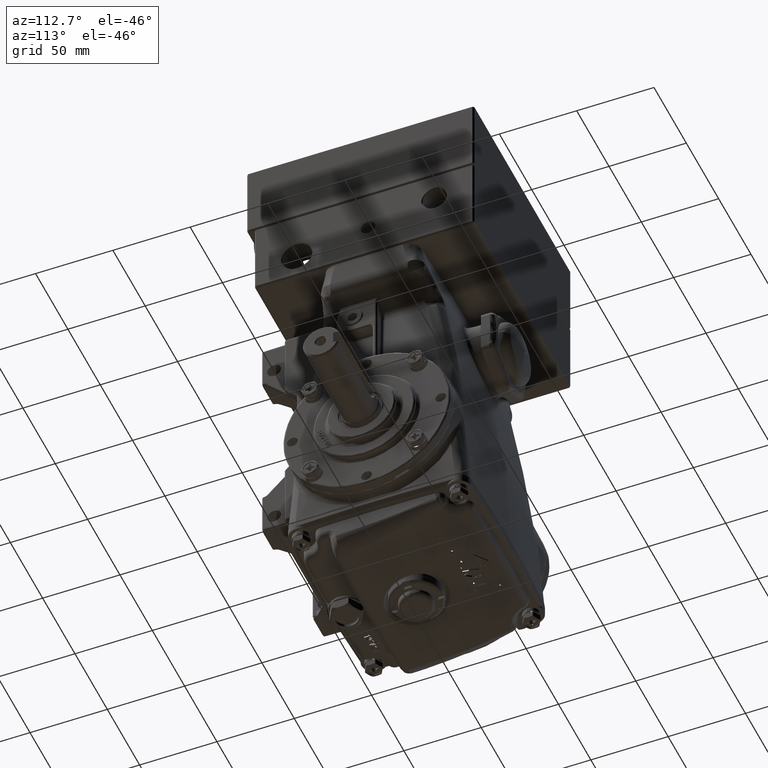
[diagram: clean part render]
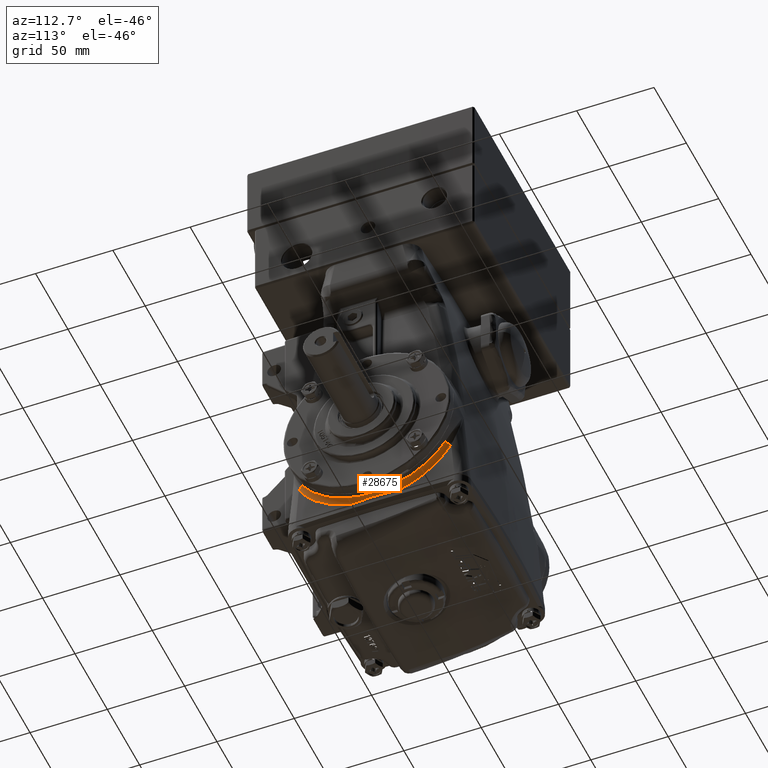
[diagram: same view with one face highlighted and labeled with its STEP entity id]
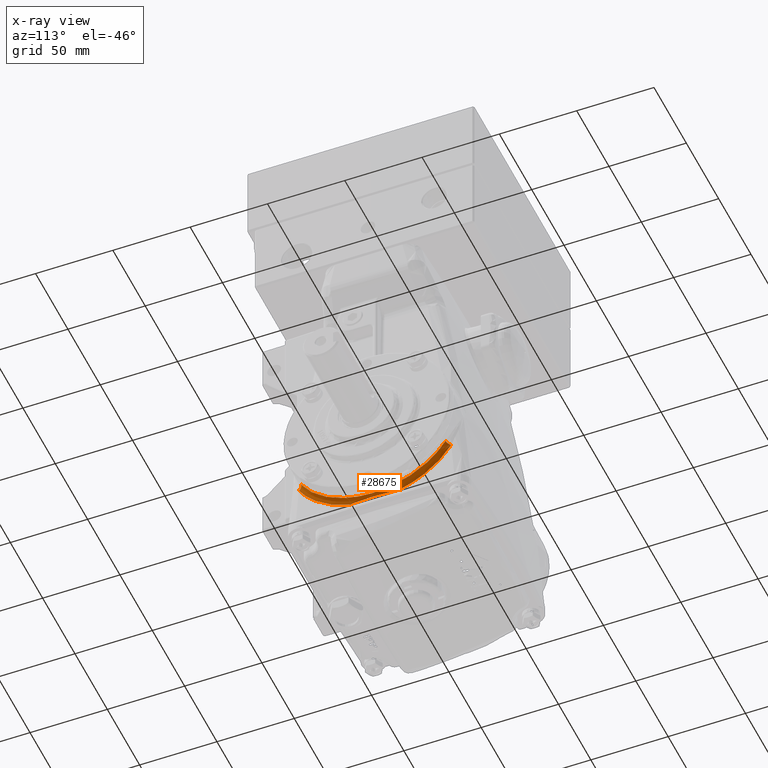
[diagram: x-ray of the same camera — body ghosted, the highlighted face saturated]
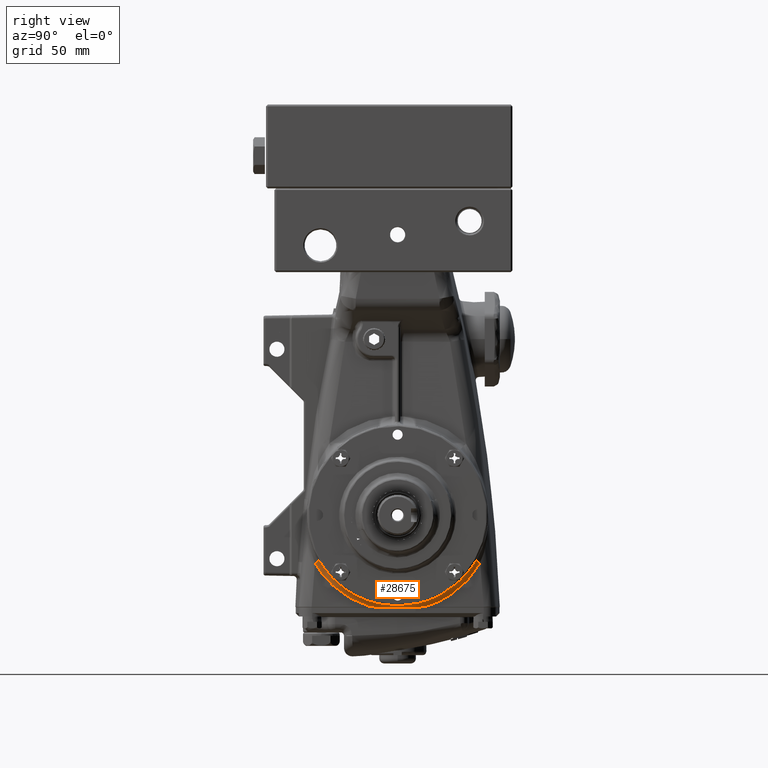
[diagram: same view with one face highlighted and labeled with its STEP entity id]
A machine part, auxiliary view. The second image highlights one B-rep face of the part: STEP entity #28675.
The next image is the same camera in x-ray: the body ghosted, the highlighted face saturated — about 0% of this face is hidden behind the body in this view.
A second angle (right view) of the same face is appended — the face is thin or edge-on in the first view.
In plain terms, the highlighted face is a freeform B-spline surface patch.
Its self-contained STEP definition (entity closure, byte-faithful):
#23 = CARTESIAN_POINT ( 'NONE',  ( 2.533662841169639801, -1.617947998289425149, -1.557200396509099694 ) ) ;
#648 = CARTESIAN_POINT ( 'NONE',  ( 2.644565679274406111, -1.658161094017195358, -1.337354464801967069 ) ) ;
#870 = CARTESIAN_POINT ( 'NONE',  ( 2.544669586071942380, -1.221535100532345375, -1.750112765976864271 ) ) ;
#1262 = CARTESIAN_POINT ( 'NONE',  ( 2.555075118178322668, -0.6404734185167771932, -2.153543307086315917 ) ) ;
#1298 = FACE_OUTER_BOUND ( 'NONE', #17315, .T. ) ;
#1511 = CARTESIAN_POINT ( 'NONE',  ( 2.669889708392947814, 0.6394416007698479065, -2.032928589424304544 ) ) ;
#1712 = CARTESIAN_POINT ( 'NONE',  ( 2.548949484824901024, -1.022806363078668568, -1.871388351057161392 ) ) ;
#1926 = CARTESIAN_POINT ( 'NONE',  ( 2.647743888551647995, 1.566636320473507427, -1.442810299648261241 ) ) ;
#2128 = CARTESIAN_POINT ( 'NONE',  ( 2.558814087439527540, 0.1828781448539885945, -2.126078821022451049 ) ) ;
#2334 = CARTESIAN_POINT ( 'NONE',  ( 2.671949241928070595, 0.4604519964451422309, -2.079200573250728823 ) ) ;
#2539 = CARTESIAN_POINT ( 'NONE',  ( 2.558184714264037041, -0.3008402396508382814, -2.110707117994672366 ) ) ;
#2867 = EDGE_CURVE ( 'NONE', #45220, #8309, #32779, .T. ) ;
#2951 = CARTESIAN_POINT ( 'NONE',  ( 2.556782167167373387, -0.4864084616807792250, -2.194172403450410869 ) ) ;
#3367 = CARTESIAN_POINT ( 'NONE',  ( 2.558045679442789044, -0.3238467914005959680, -2.107304575885299958 ) ) ;
#3788 = CARTESIAN_POINT ( 'NONE',  ( 2.539031074582507319, 1.438562375046146258, -1.726894780805150909 ) ) ;
#3866 = CARTESIAN_POINT ( 'NONE',  ( 2.534309786186392355, 1.597031957751703812, -1.578360898291733649 ) ) ;
#4218 = CARTESIAN_POINT ( 'NONE',  ( 2.532430959056218622, 1.658885297067743902, -1.340924036746132586 ) ) ;
#4465 = DIRECTION ( 'NONE',  ( 0.000000000000000000, -0.8648018545388614919, -0.5021132864067091583 ) ) ;
#4649 = CARTESIAN_POINT ( 'NONE',  ( 2.555196129306011699, 0.6378542994640497010, -2.036428387833685960 ) ) ;
#5068 = CARTESIAN_POINT ( 'NONE',  ( 2.554756005597019985, 0.6722682728851658851, -2.146013995122913354 ) ) ;
#5497 = CARTESIAN_POINT ( 'NONE',  ( 2.637595659439549323, 1.842469967156803001, -1.068593768694690249 ) ) ;
#5747 = CARTESIAN_POINT ( 'NONE',  ( 2.522521393050355609, -1.940161841764285855, -1.127831104470543133 ) ) ;
#5798 = CARTESIAN_POINT ( 'NONE',  ( 2.663869551404951075, -0.9802377651320554053, -1.890786485681149820 ) ) ;
#6881 = CARTESIAN_POINT ( 'NONE',  ( 2.651958226480952252, -1.437967453600704548, -1.573498494630629407 ) ) ;
#7302 = CARTESIAN_POINT ( 'NONE',  ( 2.540989341622620579, -1.368347640236420082, -1.637995886437610293 ) ) ;
#8144 = CARTESIAN_POINT ( 'NONE',  ( 2.522521393050355609, -1.940161841764285411, -1.127831104470542467 ) ) ;
#8309 = VERTEX_POINT ( 'NONE', #64370 ) ;
#8408 = ORIENTED_EDGE ( 'NONE', *, *, #82575, .F. ) ;
#8562 = CARTESIAN_POINT ( 'NONE',  ( 2.660149751681381236, -1.144808253429962175, -1.797871288508219312 ) ) ;
#8754 = CARTESIAN_POINT ( 'NONE',  ( 2.672754673123566516, -0.3684781519284270890, -2.097048332008029536 ) ) ;
#8976 = CARTESIAN_POINT ( 'NONE',  ( 2.559052085147528466, -0.09875448280256569900, -2.247014776447992634 ) ) ;
#9393 = CARTESIAN_POINT ( 'NONE',  ( 2.663829786781286568, -0.9821169879143923920, -1.889812968219207079 ) ) ;
#9808 = CARTESIAN_POINT ( 'NONE',  ( 2.557015086646113655, -0.4614863937323371301, -2.081917431988376421 ) ) ;
#9842 = ORIENTED_EDGE ( 'NONE', *, *, #27248, .F. ) ;
#9881 = CARTESIAN_POINT ( 'NONE',  ( 2.538898389139051304, 1.442292871496442253, -1.722454615774438702 ) ) ;
#10221 = CARTESIAN_POINT ( 'NONE',  ( 2.644563709260681961, 1.658215685450744603, -1.337285343116261460 ) ) ;
#10298 = CARTESIAN_POINT ( 'NONE',  ( 2.541868229160636705, 1.331996865016377596, -1.809395644676925929 ) ) ;
#10712 = CARTESIAN_POINT ( 'NONE',  ( 2.555075118178336879, 0.6404734185157724413, -2.153543307086616121 ) ) ;
#11054 = CARTESIAN_POINT ( 'NONE',  ( 2.665568392059273428, 0.8963036899662819579, -1.931945387120824309 ) ) ;
#11468 = CARTESIAN_POINT ( 'NONE',  ( 2.545081750335998816, 1.203034634218210108, -1.899131247718302218 ) ) ;
#11785 = EDGE_CURVE ( 'NONE', #25465, #26862, #45399, .T. ) ;
#11888 = CARTESIAN_POINT ( 'NONE',  ( 2.639463853244834901, 1.795483805880083050, -1.149514228360580370 ) ) ;
#12196 = CARTESIAN_POINT ( 'NONE',  ( 2.637595646717533882, -1.842470287122776940, -1.068593217643021065 ) ) ;
#12546 = AXIS2_PLACEMENT_3D ( 'NONE', #45602, #13046, #60080 ) ;
#12842 = CARTESIAN_POINT ( 'NONE',  ( 2.533330167034940406, -1.630694908148139888, -1.375038247301973549 ) ) ;
#13046 = DIRECTION ( 'NONE',  ( -0.01891316381556707241, 0.5020237322793777990, 0.8646470172635589702 ) ) ;
#13264 = CARTESIAN_POINT ( 'NONE',  ( 2.538961819241198015, -1.441037874825124909, -1.724825093989587055 ) ) ;
#13901 = CARTESIAN_POINT ( 'NONE',  ( 2.654127589063849157, -1.366640611082587942, -1.635735065369005481 ) ) ;
#14093 = CARTESIAN_POINT ( 'NONE',  ( 2.571794777511133834, -0.3730560710662267909, -2.159112323173161929 ) ) ;
#14129 = CARTESIAN_POINT ( 'NONE',  ( 2.526150870638102397, -1.843822404019634265, -1.071815996959238459 ) ) ;
#14222 = CARTESIAN_POINT ( 'NONE',  ( 2.528170794416854772, -1.786350543573889116, -1.366570344067513876 ) ) ;
#14320 = CARTESIAN_POINT ( 'NONE',  ( 2.669888973917283970, -0.6395183349348724233, -2.032912334194901138 ) ) ;
#14512 = CARTESIAN_POINT ( 'NONE',  ( 2.595222666992426319, -0.05238625308655806001, -2.162049434835244810 ) ) ;
#14757 = CARTESIAN_POINT ( 'NONE',  ( 2.654131374056228232, 1.366509919037226073, -1.635840865738459105 ) ) ;
#14967 = CARTESIAN_POINT ( 'NONE',  ( 2.551178045830564844, -0.9021384804870126173, -2.057926655999148480 ) ) ;
#15157 = CARTESIAN_POINT ( 'NONE',  ( 2.673251884674515466, -0.2994465070169697873, -2.107999502460295993 ) ) ;
#15388 = CARTESIAN_POINT ( 'NONE',  ( 2.671490950158114774, 0.5044105862805201568, -2.068981735655221144 ) ) ;
#15484 = CARTESIAN_POINT ( 'NONE',  ( 2.525212039038612577, -1.868742383891539793, -1.251120475395755438 ) ) ;
#15582 = CARTESIAN_POINT ( 'NONE',  ( 2.665554974222559270, -0.8969906422370775845, -1.931623135756916465 ) ) ;
#15600 = CARTESIAN_POINT ( 'NONE',  ( 2.671478390218202659, 0.5055604446529387008, -2.068700662797995360 ) ) ;
#15807 = CARTESIAN_POINT ( 'NONE',  ( 2.672551133883653840, -0.3932497488697337396, -2.092549873484019773 ) ) ;
#16019 = CARTESIAN_POINT ( 'NONE',  ( 2.641456466957074145, 1.743588930305946194, -1.226671725202621799 ) ) ;
#16225 = CARTESIAN_POINT ( 'NONE',  ( 2.673120181485983515, 0.3216932427823801510, -2.105110377670062149 ) ) ;
#16300 = CARTESIAN_POINT ( 'NONE',  ( 2.522521405743281431, 1.940161504848278540, -1.127831686078825335 ) ) ;
#16647 = CARTESIAN_POINT ( 'NONE',  ( 2.556590733738124399, -0.5066964427480833422, -2.071381742713160445 ) ) ;
#17063 = CARTESIAN_POINT ( 'NONE',  ( 2.548989531116240048, 1.020776816029187684, -1.872491011706180375 ) ) ;
#17315 = EDGE_LOOP ( 'NONE', ( #8408, #70328, #40162, #73099, #9842, #30128, #45461 ) ) ;
#17482 = CARTESIAN_POINT ( 'NONE',  ( 2.527836920579546565, 1.796606395682856405, -1.152956972367890520 ) ) ;
#17909 = CARTESIAN_POINT ( 'NONE',  ( 2.544727279976935375, 1.219095107867591565, -1.751809086446870278 ) ) ;
#18322 = CARTESIAN_POINT ( 'NONE',  ( 2.554037694707636419, 0.7252225545560847531, -2.007012604094835062 ) ) ;
#18370 = CARTESIAN_POINT ( 'NONE',  ( 2.555075118178336879, 0.6404734185157724413, -2.153543307086616121 ) ) ;
#18747 = CARTESIAN_POINT ( 'NONE',  ( 2.526150882110662632, 1.843822082743088009, -1.071816549074976921 ) ) ;
#19699 = CARTESIAN_POINT ( 'NONE',  ( 2.532596377790528486, -1.651509631267456646, -1.521447570054813347 ) ) ;
#19804 = CARTESIAN_POINT ( 'NONE',  ( 2.553399172580522514, -0.7753172846722137246, -2.113299935076992764 ) ) ;
#20123 = CARTESIAN_POINT ( 'NONE',  ( 2.529417662413968149, -1.747789891435637344, -1.409375032725401544 ) ) ;
#20323 = CARTESIAN_POINT ( 'NONE',  ( 2.652014084985076181, -1.436167154418120040, -1.575136017082258810 ) ) ;
#21421 = CARTESIAN_POINT ( 'NONE',  ( 2.673943727737666087, 0.1830836553298921254, -2.123177324260775212 ) ) ;
#21846 = CARTESIAN_POINT ( 'NONE',  ( 2.553420348467498435, -0.7673498105975743444, -2.113762831098428663 ) ) ;
#22058 = CARTESIAN_POINT ( 'NONE',  ( 2.665552481601454637, 0.8971246641472210293, -1.931564028516423726 ) ) ;
#22260 = CARTESIAN_POINT ( 'NONE',  ( 2.557038486135543742, 0.4588450730812410616, -2.082497278873853830 ) ) ;
#22675 = CARTESIAN_POINT ( 'NONE',  ( 2.551981145798519979, -0.8561536551431466746, -1.953162770746655674 ) ) ;
#22770 = CARTESIAN_POINT ( 'NONE',  ( 2.534308911856474111, -1.599602653871112334, -1.581785142409591005 ) ) ;
#23090 = CARTESIAN_POINT ( 'NONE',  ( 2.547806051407871752, -1.077564244444563890, -1.971450565354707862 ) ) ;
#23512 = CARTESIAN_POINT ( 'NONE',  ( 2.524385327383201094, 1.890686287086009276, -1.213239282985889123 ) ) ;
#23935 = CARTESIAN_POINT ( 'NONE',  ( 2.532653946886692431, 1.649478353259158148, -1.523057817395206515 ) ) ;
#24358 = CARTESIAN_POINT ( 'NONE',  ( 2.536745609505012045, 1.518445472504353022, -1.497399840757333012 ) ) ;
#24782 = CARTESIAN_POINT ( 'NONE',  ( 2.534817867568023519, 1.582648776969316273, -1.429446777748173192 ) ) ;
#25092 = CARTESIAN_POINT ( 'NONE',  ( 2.662980129359804771, -1.021391764048327433, -1.868910673769390574 ) ) ;
#25211 = CARTESIAN_POINT ( 'NONE',  ( 2.649357179289986597, 1.518163469756566908, -1.493671540014969601 ) ) ;
#25465 = VERTEX_POINT ( 'NONE', #57873 ) ;
#25751 = CARTESIAN_POINT ( 'NONE',  ( 2.529595133611172386, -1.745624685493645245, -1.228628284428892270 ) ) ;
#26178 = CARTESIAN_POINT ( 'NONE',  ( 2.539087362125361125, -1.437996983032157505, -1.577303289189695645 ) ) ;
#26225 = VERTEX_POINT ( 'NONE', #5747 ) ;
#26800 = CARTESIAN_POINT ( 'NONE',  ( 2.647752594550264682, -1.566602175454658186, -1.443414358155288069 ) ) ;
#26862 = VERTEX_POINT ( 'NONE', #81371 ) ;
#27027 = CARTESIAN_POINT ( 'NONE',  ( 2.524359374520986687, -1.891375178343773555, -1.212050128554160944 ) ) ;
#27248 = EDGE_CURVE ( 'NONE', #8309, #26862, #32982, .T. ) ;
#27665 = CARTESIAN_POINT ( 'NONE',  ( 2.660192766900450589, 1.143043784224609061, -1.798972107766665607 ) ) ;
#27832 = CARTESIAN_POINT ( 'NONE',  ( 2.595172842778822542, 0.05443727002482905142, -2.162044637209844300 ) ) ;
#27870 = CARTESIAN_POINT ( 'NONE',  ( 2.558774320854242390, -0.1958398230060925671, -2.240649331318259829 ) ) ;
#28076 = CARTESIAN_POINT ( 'NONE',  ( 2.639462562493321673, 1.795516270175573359, -1.149458317731812507 ) ) ;
#28250 = CARTESIAN_POINT ( 'NONE',  ( 2.566778549834813905, -0.4264237438961118176, -2.158212845838998639 ) ) ;
#28286 = CARTESIAN_POINT ( 'NONE',  ( 2.665518931023705296, -0.8988520237661854484, -1.930759440238280167 ) ) ;
#28500 = CARTESIAN_POINT ( 'NONE',  ( 2.652016088880778888, 1.436109654293630244, -1.575201717937278589 ) ) ;
#28675 = ADVANCED_FACE ( 'NONE', ( #1298 ), #79358, .F. ) ;
#28713 = CARTESIAN_POINT ( 'NONE',  ( 2.549749371308756452, -0.9816107846522637015, -1.893289391825843104 ) ) ;
#28810 = CARTESIAN_POINT ( 'NONE',  ( 2.537409718323405894, -1.497571907919231782, -1.678870269967080997 ) ) ;
#29125 = CARTESIAN_POINT ( 'NONE',  ( 2.557736934335675727, -0.3698532820146240851, -2.099726360737129038 ) ) ;
#29525 = CARTESIAN_POINT ( 'NONE',  ( 2.674216091099344883, 0.09074929986916438485, -2.129076298395564226 ) ) ;
#29948 = CARTESIAN_POINT ( 'NONE',  ( 2.529473522518236539, 1.746145204906183412, -1.411424323673974301 ) ) ;
#30128 = ORIENTED_EDGE ( 'NONE', *, *, #2867, .F. ) ;
#30256 = AXIS2_PLACEMENT_3D ( 'NONE', #70008, #43022, #4465 ) ;
#30365 = CARTESIAN_POINT ( 'NONE',  ( 2.536264170751179492, 1.534729475688188849, -1.480724560529546707 ) ) ;
#30785 = CARTESIAN_POINT ( 'NONE',  ( 2.547850580532449616, 1.075428271842976846, -1.972616397714518577 ) ) ;
#31208 = CARTESIAN_POINT ( 'NONE',  ( 2.668610951586936064, 0.7258130409452723253, -2.003753243500436820 ) ) ;
#31633 = CARTESIAN_POINT ( 'NONE',  ( 2.662982884286108298, 1.021262002155579385, -1.868977992134230881 ) ) ;
#32599 = CARTESIAN_POINT ( 'NONE',  ( 2.530469753792167431, -1.716554683522816482, -1.447398031326744050 ) ) ;
#32779 = B_SPLINE_CURVE_WITH_KNOTS ( 'NONE', 3,
 ( #12196, #57618, #78171, #648, #64485, #26800, #40028, #20323, #13901, #83755, #66182, #25092, #5798, #15582, #67461, #61022, #14320, #67873, #40461, #73866, #8754, #54984, #15157, #41305, #81104, #34901 ),
 .UNSPECIFIED., .F., .F.,
 ( 4, 2, 2, 2, 2, 2, 2, 2, 2, 2, 2, 2, 4 ),
 ( 3.469446951953614189E-18, 0.007095239134182914492, 0.01064285870127435439, 0.01419047826836579776, 0.02128571740254867756, 0.02838095653673156776, 0.03192857610382299205, 0.03547619567091442327, 0.04257143480509729960, 0.04611905437218873083, 0.04789286415573444644, 0.04966667393928016205, 0.05676191307346302450 ),
 .UNSPECIFIED. ) ;
#32982 = B_SPLINE_CURVE_WITH_KNOTS ( 'NONE', 3,
 ( #55005, #35336, #79477, #60208, #47761, #2334, #15600, #1511, #80300, #67481, #22058, #34504, #47336, #27665, #34925, #14757, #28500, #81128, #54603, #1926, #80715, #60621, #73465, #16019, #28076, #73887 ),
 .UNSPECIFIED., .F., .F.,
 ( 4, 2, 2, 2, 2, 2, 2, 2, 2, 2, 2, 2, 4 ),
 ( 0.05676191307346303144, 0.06385649279245729504, 0.06740378265195443030, 0.07095107251145156557, 0.07804565223044582223, 0.08159294208994294362, 0.08514023194944006501, 0.09223481166843430779, 0.09932939138742852281, 0.1011030363171770835, 0.1028766812469256442, 0.1064239711064227656, 0.1135185508254169667 ),
 .UNSPECIFIED. ) ;
#33021 = CARTESIAN_POINT ( 'NONE',  ( 2.658169361293657218, -1.221884323085993929, -1.746400209990820906 ) ) ;
#33404 = CARTESIAN_POINT ( 'NONE',  ( 2.586209131537505090, 0.2143068951728548110, -2.161108029525882657 ) ) ;
#34290 = CARTESIAN_POINT ( 'NONE',  ( 2.673085726885864766, -0.3241556627921439726, -2.104347041251966921 ) ) ;
#34504 = CARTESIAN_POINT ( 'NONE',  ( 2.663862085655700263, 0.9805955468574147904, -1.890604300765716950 ) ) ;
#34709 = CARTESIAN_POINT ( 'NONE',  ( 2.672740967802118561, -0.3701995188229846301, -2.096745665452354412 ) ) ;
#34901 = CARTESIAN_POINT ( 'NONE',  ( 2.674213100711848590, -2.679940259026553305E-16, -2.129011245134118990 ) ) ;
#34925 = CARTESIAN_POINT ( 'NONE',  ( 2.658219563924653972, 1.219976855289391482, -1.747725901029767215 ) ) ;
#34981 = VERTEX_POINT ( 'NONE', #68494 ) ;
#35126 = CARTESIAN_POINT ( 'NONE',  ( 2.671461146090349459, -0.5071479267634906307, -2.068314952706912901 ) ) ;
#35336 = CARTESIAN_POINT ( 'NONE',  ( 2.674213100711846813, 0.09220445916533150099, -2.129011245134119434 ) ) ;
#35537 = CARTESIAN_POINT ( 'NONE',  ( 2.546447716876799827, -1.144367949450125765, -1.801515838546904336 ) ) ;
#35940 = CARTESIAN_POINT ( 'NONE',  ( 2.557586351358484222, -0.3898367104815932405, -2.213027563840111345 ) ) ;
#36361 = CARTESIAN_POINT ( 'NONE',  ( 2.536919291828148015, 1.511916089344181646, -1.662864031514794450 ) ) ;
#36433 = CARTESIAN_POINT ( 'NONE',  ( 2.543319258852887899, 1.274821932512508971, -1.850275789495243295 ) ) ;
#36587 = B_SPLINE_CURVE_WITH_KNOTS ( 'NONE', 3,
 ( #16300, #81393, #43686, #62569, #68578, #3866, #69000, #49695, #9881, #10298, #36433, #62995, #61317, #42856, #75384, #36858, #69413, #10712 ),
 .UNSPECIFIED., .F., .F.,
 ( 4, 2, 2, 2, 2, 2, 2, 2, 4 ),
 ( 0.000000000000000000, 0.01079637219459549796, 0.01349546524324437592, 0.01619455829189325388, 0.02159274438919102715, 0.02699093048648880042, 0.02969002353513768705, 0.03238911658378657021, 0.04318548877838209593 ),
 .UNSPECIFIED. ) ;
#36858 = CARTESIAN_POINT ( 'NONE',  ( 2.551251661216406230, 0.9056284879074750771, -2.060729577437927507 ) ) ;
#37197 = CARTESIAN_POINT ( 'NONE',  ( 2.551227009230244924, 0.8993414979300488055, -2.059156188589326142 ) ) ;
#37624 = CARTESIAN_POINT ( 'NONE',  ( 2.543112154518444967, 1.284121508011915491, -1.845028214834060876 ) ) ;
#38051 = CARTESIAN_POINT ( 'NONE',  ( 2.539148810173169402, 1.435799177989012021, -1.579315244320514955 ) ) ;
#38983 = CARTESIAN_POINT ( 'NONE',  ( 2.647693721572289771, -1.568342584480180157, -1.441526528213979974 ) ) ;
#40028 = CARTESIAN_POINT ( 'NONE',  ( 2.648820834518373246, -1.534713568504321390, -1.477224150023955351 ) ) ;
#40162 = ORIENTED_EDGE ( 'NONE', *, *, #63543, .F. ) ;
#40229 = CARTESIAN_POINT ( 'NONE',  ( 2.555075118178336879, 0.6404734185157724413, -2.153543307086616121 ) ) ;
#40264 = CARTESIAN_POINT ( 'NONE',  ( 2.527813426171719779, -1.797264340660379878, -1.151826345389572959 ) ) ;
#40461 = CARTESIAN_POINT ( 'NONE',  ( 2.671952333378307731, -0.4601564324599297096, -2.079269524887313647 ) ) ;
#40660 = CARTESIAN_POINT ( 'NONE',  ( 2.555739300954496418, 0.5870343489607060539, -2.154884818657239354 ) ) ;
#40798 = CARTESIAN_POINT ( 'NONE',  ( 2.522521393050355609, -1.940161841764285855, -1.127831104470543133 ) ) ;
#41117 = CARTESIAN_POINT ( 'NONE',  ( 2.557566927301196724, -0.3928853666700782843, -2.095543328595761423 ) ) ;
#41305 = CARTESIAN_POINT ( 'NONE',  ( 2.673938020094146051, -0.1843563432123646040, -2.123052804257870907 ) ) ;
#41536 = CARTESIAN_POINT ( 'NONE',  ( 2.556617430638042254, 0.5039608320176736100, -2.072046593849918406 ) ) ;
#41954 = CARTESIAN_POINT ( 'NONE',  ( 2.673931659921058301, -0.1859746433786133302, -2.122914511452630659 ) ) ;
#42369 = CARTESIAN_POINT ( 'NONE',  ( 2.557930322120327116, -0.3413505362501350615, -2.221050971351369974 ) ) ;
#42784 = CARTESIAN_POINT ( 'NONE',  ( 2.556309456066671260, -0.5340491214267923947, -2.183018405039782284 ) ) ;
#42856 = CARTESIAN_POINT ( 'NONE',  ( 2.547439486905285655, 1.094549304272907753, -1.961739619428984893 ) ) ;
#43022 = DIRECTION ( 'NONE',  ( 0.01891315735628630243, 0.5020234735247885993, -0.8646471676406060070 ) ) ;
#43194 = CARTESIAN_POINT ( 'NONE',  ( 2.526376184701364824, 1.835965122197491972, -1.294790450364772694 ) ) ;
#43686 = CARTESIAN_POINT ( 'NONE',  ( 2.528167088852582900, 1.786444702859226963, -1.366412115100653857 ) ) ;
#44037 = CARTESIAN_POINT ( 'NONE',  ( 2.533722214005021289, 1.615774392211108301, -1.558891187059112005 ) ) ;
#44459 = CARTESIAN_POINT ( 'NONE',  ( 2.529635770737979961, 1.744430233449223655, -1.230342458377616799 ) ) ;
#44893 = CARTESIAN_POINT ( 'NONE',  ( 2.535300573131078927, 1.566822444449887941, -1.446758250170637083 ) ) ;
#45220 = VERTEX_POINT ( 'NONE', #58970 ) ;
#45399 = CIRCLE ( 'NONE', #12546, 0.1181102362204723560 ) ;
#45461 = ORIENTED_EDGE ( 'NONE', *, *, #54883, .F. ) ;
#45602 = CARTESIAN_POINT ( 'NONE',  ( 2.640547913058405971, 1.944608017082461116, -1.127831686078825557 ) ) ;
#45941 = CARTESIAN_POINT ( 'NONE',  ( 2.551250391817927454, -0.9056449500227258254, -2.060690165134674956 ) ) ;
#46273 = CARTESIAN_POINT ( 'NONE',  ( 2.645562223713322503, -1.630114228820168432, -1.371368586415006918 ) ) ;
#46673 = CARTESIAN_POINT ( 'NONE',  ( 2.558751299795714029, 0.5336760870598820095, -2.156093412988763447 ) ) ;
#47336 = CARTESIAN_POINT ( 'NONE',  ( 2.662967077234981605, 1.021977778432640260, -1.868586286260956131 ) ) ;
#47538 = CARTESIAN_POINT ( 'NONE',  ( 2.558786361083277949, 0.1927954819332166614, -2.240926736219915671 ) ) ;
#47761 = CARTESIAN_POINT ( 'NONE',  ( 2.672765217870545218, 0.3692536697095561427, -2.097297288627426592 ) ) ;
#47965 = CARTESIAN_POINT ( 'NONE',  ( 2.555160326145922589, -0.6407648287722076397, -2.035522392087665722 ) ) ;
#48375 = CARTESIAN_POINT ( 'NONE',  ( 2.558076555611877634, 0.3213819615630953419, -2.108066070294671412 ) ) ;
#48784 = CARTESIAN_POINT ( 'NONE',  ( 2.671934940563174710, -0.4619068955138430632, -2.078882271436889084 ) ) ;
#49202 = CARTESIAN_POINT ( 'NONE',  ( 2.545023926119364344, -1.205525202385144379, -1.897563331638783213 ) ) ;
#49620 = CARTESIAN_POINT ( 'NONE',  ( 2.530524512835119477, 1.714911181351691960, -1.449350619969374643 ) ) ;
#49695 = CARTESIAN_POINT ( 'NONE',  ( 2.537379520575758995, 1.495413954469080542, -1.676393745159417747 ) ) ;
#50465 = CARTESIAN_POINT ( 'NONE',  ( 2.548743659250733984, 1.031813968624458955, -1.995854597365555483 ) ) ;
#50876 = CARTESIAN_POINT ( 'NONE',  ( 2.647751422603561888, 1.566413557209693996, -1.443052121059964277 ) ) ;
#51304 = CARTESIAN_POINT ( 'NONE',  ( 2.532118892579482416, 1.666097108611876987, -1.504796684828322517 ) ) ;
#51843 = CARTESIAN_POINT ( 'NONE',  ( 2.526331207949824798, -1.837217877013155087, -1.292984194326967096 ) ) ;
#51935 = CARTESIAN_POINT ( 'NONE',  ( 2.545420378117497773, -1.185765810798643960, -1.907795939547672015 ) ) ;
#52265 = CARTESIAN_POINT ( 'NONE',  ( 2.536851131548727878, -1.514224940671907937, -1.660740623488255352 ) ) ;
#53225 = CARTESIAN_POINT ( 'NONE',  ( 2.548104544177884900, -1.062804585416000425, -1.979177553823412206 ) ) ;
#53924 = CARTESIAN_POINT ( 'NONE',  ( 2.586325952056506949, -0.2129052197051127804, -2.161121507574709000 ) ) ;
#53960 = CARTESIAN_POINT ( 'NONE',  ( 2.559058101667779361, 0.09556317240655037848, -2.247153243909142173 ) ) ;
#54346 = CARTESIAN_POINT ( 'NONE',  ( 2.593193955443588994, -0.1059275273979806559, -2.161863367372261369 ) ) ;
#54381 = CARTESIAN_POINT ( 'NONE',  ( 2.668565417165613685, -0.7286980062841605932, -2.002701917012835953 ) ) ;
#54603 = CARTESIAN_POINT ( 'NONE',  ( 2.648813858086076944, 1.534655793872980123, -1.476742552362692695 ) ) ;
#54798 = CARTESIAN_POINT ( 'NONE',  ( 2.553996883911492599, -0.7281070407455564331, -2.005963910195266653 ) ) ;
#54883 = EDGE_CURVE ( 'NONE', #26225, #45220, #67202, .T. ) ;
#54984 = CARTESIAN_POINT ( 'NONE',  ( 2.673097543496158135, -0.3224600730329762466, -2.104607054068160288 ) ) ;
#55005 = CARTESIAN_POINT ( 'NONE',  ( 2.674213100711848590, -2.679940259026553305E-16, -2.129011245134118990 ) ) ;
#55209 = CARTESIAN_POINT ( 'NONE',  ( 2.558803284389825627, -0.1857663034634107202, -2.125816892444756689 ) ) ;
#55626 = CARTESIAN_POINT ( 'NONE',  ( 2.551264616389444573, -0.8983142085636891538, -1.934160566691630834 ) ) ;
#56047 = CARTESIAN_POINT ( 'NONE',  ( 2.663878009783025469, 0.9798438868200832763, -1.890994243446376899 ) ) ;
#56466 = CARTESIAN_POINT ( 'NONE',  ( 2.533379586008488005, 1.629129377127690903, -1.376889754299107427 ) ) ;
#56890 = CARTESIAN_POINT ( 'NONE',  ( 2.660207708411382210, 1.142443083778605484, -1.799356766256419826 ) ) ;
#57315 = CARTESIAN_POINT ( 'NONE',  ( 2.647215142044891500, 1.582195945153224148, -1.425750711185812536 ) ) ;
#57618 = CARTESIAN_POINT ( 'NONE',  ( 2.639462722260367045, -1.795512260106171709, -1.149465279697698072 ) ) ;
#57737 = CARTESIAN_POINT ( 'NONE',  ( 2.549792637377660931, 0.9793364762608478546, -1.894468641847303791 ) ) ;
#57873 = CARTESIAN_POINT ( 'NONE',  ( 2.522521405743281431, 1.940161504848278540, -1.127831686078825335 ) ) ;
#58277 = CARTESIAN_POINT ( 'NONE',  ( 2.641414193050914072, -1.744705604799416720, -1.225069061636425705 ) ) ;
#58368 = CARTESIAN_POINT ( 'NONE',  ( 2.547451089912712074, -1.094006261352952203, -1.962045940599676630 ) ) ;
#58803 = CARTESIAN_POINT ( 'NONE',  ( 2.555075118178322668, -0.6404734185167771932, -2.153543307086315917 ) ) ;
#58970 = CARTESIAN_POINT ( 'NONE',  ( 2.637595646717533882, -1.842470287122776940, -1.068593217643021065 ) ) ;
#60080 = DIRECTION ( 'NONE',  ( 0.000000000000000000, 0.8648017042405976573, -0.5021135452689537981 ) ) ;
#60208 = CARTESIAN_POINT ( 'NONE',  ( 2.673111083534315480, 0.3229975887689997549, -2.104910281018374629 ) ) ;
#60407 = CARTESIAN_POINT ( 'NONE',  ( 2.558085233552549465, -0.3171026756639077071, -2.224653663161752615 ) ) ;
#60621 = CARTESIAN_POINT ( 'NONE',  ( 2.645611163643341257, 1.628722084624372402, -1.373017620904652070 ) ) ;
#60794 = CARTESIAN_POINT ( 'NONE',  ( 2.581569547702780909, -0.2662968854550241127, -2.160566671731457333 ) ) ;
#60827 = CARTESIAN_POINT ( 'NONE',  ( 2.557620630442948073, 0.3875069868645685256, -2.213845298945232187 ) ) ;
#61022 = CARTESIAN_POINT ( 'NONE',  ( 2.668593970321156306, -0.7268766512418783909, -2.003360281744001270 ) ) ;
#61207 = CARTESIAN_POINT ( 'NONE',  ( 2.558772546047031415, -0.5332985797550708895, -2.156101929537241446 ) ) ;
#61239 = B_SPLINE_CURVE_WITH_KNOTS ( 'NONE', 3,
 ( #58803, #19804, #45941, #53225, #58368, #84504, #51935, #78072, #73774, #28810, #22770, #14222, #15484, #40798 ),
 .UNSPECIFIED., .F., .F.,
 ( 4, 2, 2, 2, 2, 2, 4 ),
 ( 0.07628695271224930630, 0.08708432121292165873, 0.08978366333808975031, 0.09248300546325782800, 0.09788168971359399728, 0.1086790582142663497, 0.1194764267149386883 ),
 .UNSPECIFIED. ) ;
#61242 = CARTESIAN_POINT ( 'NONE',  ( 2.666317975551002917, -0.8566985625819989458, -1.949802155470875764 ) ) ;
#61317 = CARTESIAN_POINT ( 'NONE',  ( 2.546100727815017173, 1.155851350794592891, -1.926132371475293148 ) ) ;
#61666 = CARTESIAN_POINT ( 'NONE',  ( 2.548695546513586763, -1.034207602142077853, -1.994607758136817788 ) ) ;
#62081 = CARTESIAN_POINT ( 'NONE',  ( 2.543048064074771020, -1.286687560092792948, -1.843235907752463820 ) ) ;
#62495 = CARTESIAN_POINT ( 'NONE',  ( 2.522521405743281431, 1.940161504848278540, -1.127831686078825335 ) ) ;
#62569 = CARTESIAN_POINT ( 'NONE',  ( 2.531994206075066867, 1.670030546187019516, -1.500633893545321174 ) ) ;
#62995 = CARTESIAN_POINT ( 'NONE',  ( 2.545415413096871582, 1.185979616826571714, -1.907660918610553757 ) ) ;
#63331 = CARTESIAN_POINT ( 'NONE',  ( 2.552025153322798445, 0.8534971425085629004, -1.954325194691886480 ) ) ;
#63543 = EDGE_CURVE ( 'NONE', #25465, #80115, #36587, .T. ) ;
#63754 = CARTESIAN_POINT ( 'NONE',  ( 2.648822138001706961, 1.534405854341966524, -1.477002200835625834 ) ) ;
#64182 = CARTESIAN_POINT ( 'NONE',  ( 2.666367051171969038, 0.8540424356393966354, -1.950967028692303762 ) ) ;
#64370 = CARTESIAN_POINT ( 'NONE',  ( 2.674213100711848590, -2.679940259026553305E-16, -2.129011245134118990 ) ) ;
#64485 = CARTESIAN_POINT ( 'NONE',  ( 2.645622165619224475, -1.628409478701147162, -1.373388818257349708 ) ) ;
#65141 = CARTESIAN_POINT ( 'NONE',  ( 2.535249036079144425, -1.568744792085043471, -1.445245764945317202 ) ) ;
#65576 = CARTESIAN_POINT ( 'NONE',  ( 2.637595646717533882, -1.842470287122776940, -1.068593217643021065 ) ) ;
#65989 = CARTESIAN_POINT ( 'NONE',  ( 2.536211018158781805, -1.536785965458510761, -1.479134695277026346 ) ) ;
#66182 = CARTESIAN_POINT ( 'NONE',  ( 2.660196129883268590, -1.142929655353285501, -1.799062687809367844 ) ) ;
#67202 = CIRCLE ( 'NONE', #30256, 0.1181102362204724809 ) ;
#67227 = CARTESIAN_POINT ( 'NONE',  ( 2.566717455735521458, 0.4271463895575615122, -2.158199622048377453 ) ) ;
#67258 = CARTESIAN_POINT ( 'NONE',  ( 2.557767769292115467, 0.3676353015069447894, -2.100500271835758159 ) ) ;
#67461 = CARTESIAN_POINT ( 'NONE',  ( 2.666352147678286322, -0.8548467719520849162, -1.950613127604710284 ) ) ;
#67481 = CARTESIAN_POINT ( 'NONE',  ( 2.666351239691660435, 0.8548985500815409200, -1.950591760190255597 ) ) ;
#67682 = CARTESIAN_POINT ( 'NONE',  ( 2.556808232783183588, 0.4836250661137250217, -2.194786261203402145 ) ) ;
#67873 = CARTESIAN_POINT ( 'NONE',  ( 2.671480383017431404, -0.5053850771321188873, -2.068745392680171324 ) ) ;
#68092 = CARTESIAN_POINT ( 'NONE',  ( 2.550380828383032927, -0.9465273264798373942, -2.037826936971705472 ) ) ;
#68494 = CARTESIAN_POINT ( 'NONE',  ( 2.555075118178322668, -0.6404734185167771932, -2.153543307086315917 ) ) ;
#68510 = CARTESIAN_POINT ( 'NONE',  ( 2.554716134786361170, -0.6753346531668745767, -2.145055032860369693 ) ) ;
#68578 = CARTESIAN_POINT ( 'NONE',  ( 2.532767570887404229, 1.646022429080777005, -1.527019655595136083 ) ) ;
#68921 = CARTESIAN_POINT ( 'NONE',  ( 2.669864173191497603, -0.6413171963477432014, -2.032348324000067041 ) ) ;
#69000 = CARTESIAN_POINT ( 'NONE',  ( 2.535079882450502087, 1.572013365769583171, -1.603362420749185446 ) ) ;
#69341 = CARTESIAN_POINT ( 'NONE',  ( 2.546499738305039617, 1.142000915486188983, -1.802999101501783885 ) ) ;
#69413 = CARTESIAN_POINT ( 'NONE',  ( 2.553401186597082262, 0.7751552401646748525, -2.113348296323183106 ) ) ;
#69762 = CARTESIAN_POINT ( 'NONE',  ( 2.654143165558966899, 1.366113459070640967, -1.636175213884302426 ) ) ;
#70008 = CARTESIAN_POINT ( 'NONE',  ( 2.640547900336390086, -1.944608354770621217, -1.127831104470543133 ) ) ;
#70185 = CARTESIAN_POINT ( 'NONE',  ( 2.652026542961210875, 1.435774816574997503, -1.575510289459635338 ) ) ;
#70328 = ORIENTED_EDGE ( 'NONE', *, *, #74756, .T. ) ;
#70611 = CARTESIAN_POINT ( 'NONE',  ( 2.645617108256887562, 1.628553433254269267, -1.373218562220189121 ) ) ;
#71567 = CARTESIAN_POINT ( 'NONE',  ( 2.532380532331596434, -1.660452290189829094, -1.338980406666620215 ) ) ;
#71994 = CARTESIAN_POINT ( 'NONE',  ( 2.654073751504601120, -1.368464346353823746, -1.634214324959638143 ) ) ;
#72380 = CARTESIAN_POINT ( 'NONE',  ( 2.581458880614824203, 0.2675239500989782249, -2.160552200621773888 ) ) ;
#72415 = CARTESIAN_POINT ( 'NONE',  ( 2.648762629095132048, -1.536470040242360557, -1.475400298025357548 ) ) ;
#72791 = CARTESIAN_POINT ( 'NONE',  ( 2.593102016153193468, 0.1077650117259604245, -2.161854270226212460 ) ) ;
#73099 = ORIENTED_EDGE ( 'NONE', *, *, #11785, .T. ) ;
#73216 = CARTESIAN_POINT ( 'NONE',  ( 2.555742178185109292, -0.5868028516462725497, -2.154890630066913726 ) ) ;
#73465 = CARTESIAN_POINT ( 'NONE',  ( 2.644558561933787022, 1.658359136561663227, -1.337106508342973399 ) ) ;
#73669 = CARTESIAN_POINT ( 'NONE',  ( 2.557964697936012222, 0.3387575097799512824, -2.221856687849757428 ) ) ;
#73774 = CARTESIAN_POINT ( 'NONE',  ( 2.541865911258792465, -1.332087076475240828, -1.809329799996234334 ) ) ;
#73866 = CARTESIAN_POINT ( 'NONE',  ( 2.672565783073795664, -0.3915183373582376003, -2.092874025833097118 ) ) ;
#73887 = CARTESIAN_POINT ( 'NONE',  ( 2.637595659439549323, 1.842469967156803001, -1.068593768694690249 ) ) ;
#74084 = CARTESIAN_POINT ( 'NONE',  ( 2.559052396494613024, -0.09368575467527523459, -2.131824688473260121 ) ) ;
#74493 = CARTESIAN_POINT ( 'NONE',  ( 2.556339191986588766, 0.5311665909730007851, -2.183722206280062750 ) ) ;
#74756 = EDGE_CURVE ( 'NONE', #34981, #80115, #79021, .T. ) ;
#74897 = CARTESIAN_POINT ( 'NONE',  ( 2.674210060805966460, -0.09377985208715168552, -2.128945114646813241 ) ) ;
#75314 = CARTESIAN_POINT ( 'NONE',  ( 2.662938253103700248, -1.023290419926624395, -1.867873462492306125 ) ) ;
#75384 = CARTESIAN_POINT ( 'NONE',  ( 2.548094607319814742, 1.063289180877772466, -1.978918435536660025 ) ) ;
#75730 = CARTESIAN_POINT ( 'NONE',  ( 2.669904135382510812, 0.6384052579428051155, -2.033256849570027835 ) ) ;
#76155 = CARTESIAN_POINT ( 'NONE',  ( 2.551308978066149091, 0.8957651456550518310, -1.935344190096592198 ) ) ;
#76581 = CARTESIAN_POINT ( 'NONE',  ( 2.658233598629589078, 1.219447460214580614, -1.748098287361397274 ) ) ;
#77004 = CARTESIAN_POINT ( 'NONE',  ( 2.641459272868702080, 1.743515882798927441, -1.226780408780017595 ) ) ;
#77435 = CARTESIAN_POINT ( 'NONE',  ( 2.553465778781859985, 0.7643118419373798877, -2.114872519028318631 ) ) ;
#77972 = CARTESIAN_POINT ( 'NONE',  ( 2.644507721128468436, -1.659777609017484945, -1.335343742871459405 ) ) ;
#78072 = CARTESIAN_POINT ( 'NONE',  ( 2.543319069891751383, -1.274836660287675283, -1.850272416929959141 ) ) ;
#78171 = CARTESIAN_POINT ( 'NONE',  ( 2.641458314210825886, -1.743543146296038682, -1.226748288236988893 ) ) ;
#78819 = CARTESIAN_POINT ( 'NONE',  ( 2.639437840929456325, -1.796138039924283669, -1.148387549062545698 ) ) ;
#79021 = B_SPLINE_CURVE_WITH_KNOTS ( 'NONE', 3,
 ( #1262, #73216, #61207, #28250, #14093, #60794, #53924, #54346, #14512, #27832, #72791, #33404, #72380, #80058, #67227, #46673, #40660, #40229 ),
 .UNSPECIFIED., .F., .F.,
 ( 4, 2, 2, 2, 2, 2, 2, 2, 4 ),
 ( 2.636350532754183444E-15, 0.004084075116287970084, 0.008168150232573303388, 0.01225222534885863669, 0.01633630046514397000, 0.02042037558142930503, 0.02450445069771463660, 0.02858852581399996817, 0.03267260093028530321 ),
 .UNSPECIFIED. ) ;
#79358 =( BOUNDED_SURFACE ( )  B_SPLINE_SURFACE ( 3, 2, ( 
 ( #65576, #14129, #8144 ),
 ( #78819, #40264, #27027 ),
 ( #58277, #25751, #51843 ),
 ( #77972, #71567, #20123 ),
 ( #46273, #12842, #32599 ),
 ( #38983, #65141, #19699 ),
 ( #72415, #65989, #23 ),
 ( #6881, #26178, #52265 ),
 ( #71994, #7302, #13264 ),
 ( #33021, #870, #62081 ),
 ( #8562, #35537, #49202 ),
 ( #75314, #1712, #23090 ),
 ( #9393, #28713, #61666 ),
 ( #28286, #55626, #68092 ),
 ( #61242, #22675, #14967 ),
 ( #54381, #54798, #21846 ),
 ( #68921, #47965, #68510 ),
 ( #35126, #16647, #42784 ),
 ( #48784, #9808, #2951 ),
 ( #15807, #41117, #80504 ),
 ( #34709, #29125, #35940 ),
 ( #34290, #3367, #42369 ),
 ( #80089, #2539, #60407 ),
 ( #41954, #55209, #27870 ),
 ( #74897, #74084, #8976 ),
 ( #29525, #81741, #53960 ),
 ( #21421, #2128, #47538 ),
 ( #16225, #48375, #73669 ),
 ( #81322, #67258, #60827 ),
 ( #80909, #22260, #67682 ),
 ( #15388, #41536, #74493 ),
 ( #75730, #4649, #5068 ),
 ( #31208, #18322, #77435 ),
 ( #64182, #63331, #37197 ),
 ( #11054, #76155, #83866 ),
 ( #56047, #57737, #50465 ),
 ( #31633, #17063, #30785 ),
 ( #56890, #69341, #11468 ),
 ( #76581, #17909, #37624 ),
 ( #69762, #83018, #3788 ),
 ( #70185, #38051, #36361 ),
 ( #25211, #24358, #83451 ),
 ( #63754, #30365, #44037 ),
 ( #50876, #44893, #23935 ),
 ( #57315, #24782, #51304 ),
 ( #70611, #56466, #49620 ),
 ( #10221, #4218, #29948 ),
 ( #77004, #44459, #43194 ),
 ( #11888, #17482, #23512 ),
 ( #5497, #18747, #62495 ) ),
 .UNSPECIFIED., .F., .F., .T. ) 
 B_SPLINE_SURFACE_WITH_KNOTS ( ( 4, 2, 2, 2, 2, 2, 2, 2, 2, 2, 2, 2, 2, 2, 2, 2, 2, 2, 2, 2, 2, 2, 2, 2, 4 ),
 ( 3, 3 ),
 ( 0.06581737841232657149, 0.07323730248038495816, 0.07694726451441415149, 0.08065722654844334483, 0.08807715061650173149, 0.09549707468456013204, 0.09920703671858932537, 0.1029169987526185326, 0.1103369228206769193, 0.1140468848547061126, 0.1159018658717207162, 0.1177568468887353059, 0.1251767709567936926, 0.1325966950248520793, 0.1363066570588812865, 0.1400166190929104659, 0.1474365431609688804, 0.1511465051949980598, 0.1548564672290272670, 0.1622763912970856537, 0.1696963153651440681, 0.1715512963821586578, 0.1734062773991732476, 0.1771162394332024548, 0.1845361635012608414 ),
 ( 0.000000000000000000, 1.000000000000000000 ),
 .UNSPECIFIED. ) 
 GEOMETRIC_REPRESENTATION_ITEM ( )  RATIONAL_B_SPLINE_SURFACE ( (
 ( 1.000000000000000000, 0.7271637055258119986, 1.000000000000000000),
 ( 1.000000000000000000, 0.7266013535730051487, 1.000000000000000000),
 ( 1.000000000000000000, 0.7259972906189697817, 1.000000000000000000),
 ( 1.000000000000000000, 0.7250503568377546504, 1.000000000000000000),
 ( 1.000000000000000000, 0.7247273438753464303, 1.000000000000000000),
 ( 1.000000000000000000, 0.7240739338136522596, 1.000000000000000000),
 ( 1.000000000000000000, 0.7237460167024755142, 1.000000000000000000),
 ( 1.000000000000000000, 0.7227649472187053226, 1.000000000000000000),
 ( 1.000000000000000000, 0.7221144772369803011, 1.000000000000000000),
 ( 1.000000000000000000, 0.7208533951668778528, 1.000000000000000000),
 ( 1.000000000000000000, 0.7202426905103694876, 1.000000000000000000),
 ( 1.000000000000000000, 0.7193817043501111730, 1.000000000000000000),
 ( 1.000000000000000000, 0.7191062425457216412, 1.000000000000000000),
 ( 1.000000000000000000, 0.7185840417700734006, 1.000000000000000000),
 ( 1.000000000000000000, 0.7183368602046390494, 1.000000000000000000),
 ( 1.000000000000000000, 0.7176412757691429389, 1.000000000000000000),
 ( 1.000000000000000000, 0.7172388204268760337, 1.000000000000000000),
 ( 1.000000000000000000, 0.7167436520371056607, 1.000000000000000000),
 ( 1.000000000000000000, 0.7165966820519572567, 1.000000000000000000),
 ( 1.000000000000000000, 0.7164054924391173307, 1.000000000000000000),
 ( 1.000000000000000000, 0.7163465823337303862, 1.000000000000000000),
 ( 1.000000000000000000, 0.7162395832485853875, 1.000000000000000000),
 ( 1.000000000000000000, 0.7161913883979579287, 1.000000000000000000),
 ( 1.000000000000000000, 0.7159769863775163889, 1.000000000000000000),
 ( 1.000000000000000000, 0.7158905121037471009, 1.000000000000000000),
 ( 1.000000000000000000, 0.7158886393886705335, 1.000000000000000000),
 ( 1.000000000000000000, 0.7159732389126038932, 1.000000000000000000),
 ( 1.000000000000000000, 0.7162288923567519117, 1.000000000000000000),
 ( 1.000000000000000000, 0.7163359299351312881, 1.000000000000000000),
 ( 1.000000000000000000, 0.7165885773068125797, 1.000000000000000000),
 ( 1.000000000000000000, 0.7167344081210006435, 1.000000000000000000),
 ( 1.000000000000000000, 0.7172264345566560229, 1.000000000000000000),
 ( 1.000000000000000000, 0.7176271721887198529, 1.000000000000000000),
 ( 1.000000000000000000, 0.7183216763465704036, 1.000000000000000000),
 ( 1.000000000000000000, 0.7185687446432514891, 1.000000000000000000),
 ( 1.000000000000000000, 0.7190913401984596609, 1.000000000000000000),
 ( 1.000000000000000000, 0.7193679171197059352, 1.000000000000000000),
 ( 1.000000000000000000, 0.7202248086319609222, 1.000000000000000000),
 ( 1.000000000000000000, 0.7208335957718947640, 1.000000000000000000),
 ( 1.000000000000000000, 0.7220931232949828749, 1.000000000000000000),
 ( 1.000000000000000000, 0.7227439540008098184, 1.000000000000000000),
 ( 1.000000000000000000, 0.7235634904139266466, 1.000000000000000000),
 ( 1.000000000000000000, 0.7237276952207482017, 1.000000000000000000),
 ( 1.000000000000000000, 0.7240561760708538186, 1.000000000000000000),
 ( 1.000000000000000000, 0.7242206378835571723, 1.000000000000000000),
 ( 1.000000000000000000, 0.7247105270951484934, 1.000000000000000000),
 ( 1.000000000000000000, 0.7250332109009754999, 1.000000000000000000),
 ( 1.000000000000000000, 0.7259835067967266298, 1.000000000000000000),
 ( 1.000000000000000000, 0.7265933813967108135, 1.000000000000000000),
 ( 1.000000000000000000, 0.7271637016421615973, 1.000000000000000000) ) ) 
 REPRESENTATION_ITEM ( '' )  SURFACE ( )  );
#79477 = CARTESIAN_POINT ( 'NONE',  ( 2.673938078400615037, 0.1844786151598804269, -2.123054379433382710 ) ) ;
#80058 = CARTESIAN_POINT ( 'NONE',  ( 2.571711564117517224, 0.3739461792482570712, -2.159097907556798646 ) ) ;
#80089 = CARTESIAN_POINT ( 'NONE',  ( 2.673240993346792216, -0.3011292127734502833, -2.107760229460321266 ) ) ;
#80115 = VERTEX_POINT ( 'NONE', #18370 ) ;
#80300 = CARTESIAN_POINT ( 'NONE',  ( 2.668595733800589898, 0.7267760914884860979, -2.003401781462314624 ) ) ;
#80504 = CARTESIAN_POINT ( 'NONE',  ( 2.557396951511987204, -0.4141095891827281106, -2.208598821580982641 ) ) ;
#80715 = CARTESIAN_POINT ( 'NONE',  ( 2.647207998187497413, 1.582405062089980108, -1.425518607116231573 ) ) ;
#80909 = CARTESIAN_POINT ( 'NONE',  ( 2.671961065911398592, 0.4592636989545225146, -2.079463841211956598 ) ) ;
#81104 = CARTESIAN_POINT ( 'NONE',  ( 2.674213100711848146, -0.09221302923195197343, -2.129011245134119878 ) ) ;
#81128 = CARTESIAN_POINT ( 'NONE',  ( 2.649348531413402874, 1.518427305832896090, -1.493403393543848212 ) ) ;
#81322 = CARTESIAN_POINT ( 'NONE',  ( 2.672775325452279027, 0.3679871332244228910, -2.097520390666362200 ) ) ;
#81371 = CARTESIAN_POINT ( 'NONE',  ( 2.637595659439549323, 1.842469967156803001, -1.068593768694690249 ) ) ;
#81393 = CARTESIAN_POINT ( 'NONE',  ( 2.525211804761208878, 1.868748590040798074, -1.251109676916762004 ) ) ;
#81741 = CARTESIAN_POINT ( 'NONE',  ( 2.559057795399228397, 0.09065848049853926505, -2.131955447165913675 ) ) ;
#82575 = EDGE_CURVE ( 'NONE', #34981, #26225, #61239, .T. ) ;
#83018 = CARTESIAN_POINT ( 'NONE',  ( 2.541051735696844727, 1.365992394529997433, -1.639955913393303266 ) ) ;
#83451 = CARTESIAN_POINT ( 'NONE',  ( 2.534256031871978010, 1.598671212349497939, -1.576485239877605027 ) ) ;
#83755 = CARTESIAN_POINT ( 'NONE',  ( 2.658218459040016857, -1.220021425252999503, -1.747697873253284628 ) ) ;
#83866 = CARTESIAN_POINT ( 'NONE',  ( 2.550430176320302778, 0.9438438574723212460, -2.039078711061216520 ) ) ;
#84504 = CARTESIAN_POINT ( 'NONE',  ( 2.546107734093124630, -1.155542109340186308, -1.926320973801670666 ) ) ;